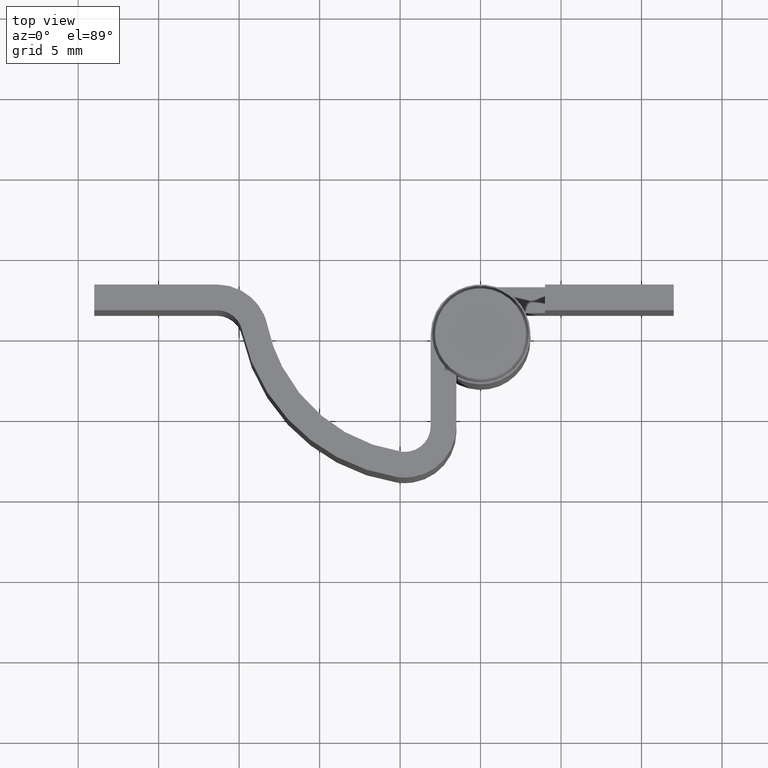
[diagram: clean part render]
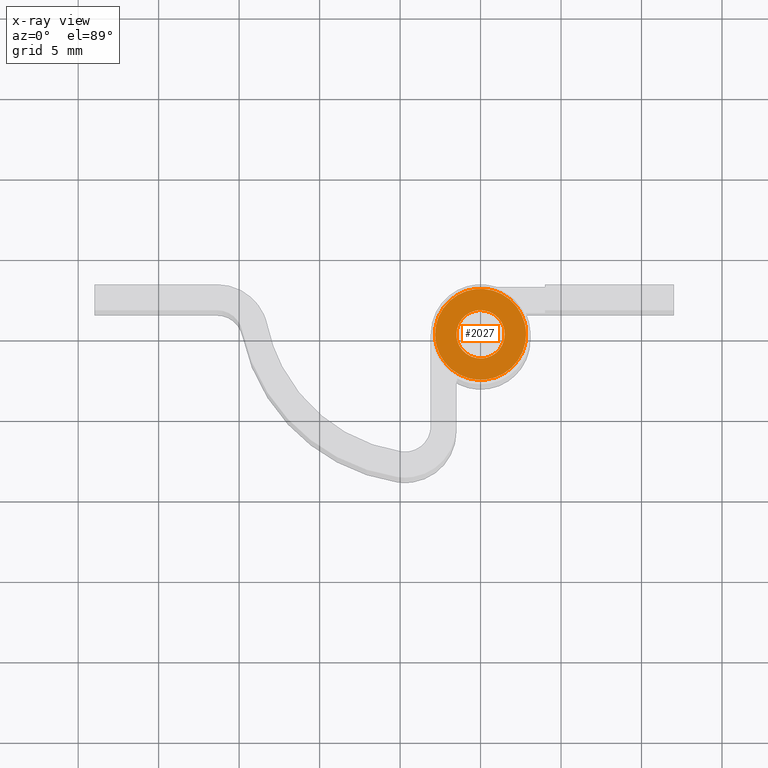
[diagram: x-ray — body ghosted, one internal face saturated and labeled with its STEP entity id]
A machine part, top view, then the same camera in x-ray: the body is ghosted and one INTERNAL B-rep face — a face not visible from any outside direction — is saturated and labeled: STEP entity #2027.
In plain terms, the highlighted face is a freeform B-spline surface patch.
Its self-contained STEP definition (entity closure, byte-faithful):
#1787=CARTESIAN_POINT('',(-0.177051352071544,1.489514289535229,23.0));
#1788=VERTEX_POINT('',#1787);
#1794=CARTESIAN_POINT('',(1.500000000000000,0.0,23.0));
#1795=VERTEX_POINT('',#1794);
#1796=CARTESIAN_POINT('',(-0.177051352071544,1.489514289535229,23.0));
#1797=CARTESIAN_POINT('',(-0.088836179565185,1.499999999999999,23.0));
#1798=CARTESIAN_POINT('',(0.0,1.500000000000000,23.0));
#1799=CARTESIAN_POINT('',(1.500000000000000,1.500000000000000,22.999999999999993));
#1800=CARTESIAN_POINT('',(1.500000000000000,0.0,23.0));
#1808=(BOUNDED_CURVE()B_SPLINE_CURVE(2,(#1796,#1797,#1798,#1799,#1800),.UNSPECIFIED.,.F.,.U.)B_SPLINE_CURVE_WITH_KNOTS((3,2,3),(0.229562473496037,0.250000000000000,0.500000000000000),.UNSPECIFIED.)CURVE()GEOMETRIC_REPRESENTATION_ITEM()RATIONAL_B_SPLINE_CURVE((0.956026754149454,0.976055948310676,1.0,0.707106781186548,1.0))REPRESENTATION_ITEM(''));
#1809=EDGE_CURVE('',#1788,#1795,#1808,.T.);
#1811=CARTESIAN_POINT('',(0.091572809393615,-1.497202197627214,23.0));
#1812=VERTEX_POINT('',#1811);
#1813=CARTESIAN_POINT('',(1.500000000000000,0.0,23.0));
#1814=CARTESIAN_POINT('',(1.500000000000000,-1.411059100186070,23.000000000000004));
#1815=CARTESIAN_POINT('',(0.091572809393615,-1.497202197627214,23.000000000000004));
#1823=(BOUNDED_CURVE()B_SPLINE_CURVE(2,(#1813,#1814,#1815),.UNSPECIFIED.,.F.,.U.)B_SPLINE_CURVE_WITH_KNOTS((3,3),(0.500000000000000,0.739332962220917),.UNSPECIFIED.)CURVE()GEOMETRIC_REPRESENTATION_ITEM()RATIONAL_B_SPLINE_CURVE((1.0,0.719603993307829,0.976072041628085))REPRESENTATION_ITEM(''));
#1824=EDGE_CURVE('',#1795,#1812,#1823,.T.);
#1898=CARTESIAN_POINT('',(-1.500000000000000,0.0,23.0));
#1899=VERTEX_POINT('',#1898);
#1900=CARTESIAN_POINT('',(0.091572809393615,-1.497202197627214,23.000000000000004));
#1901=CARTESIAN_POINT('',(0.045829145039469,-1.500000000000000,23.000000000000007));
#1902=CARTESIAN_POINT('',(0.0,-1.500000000000000,23.0));
#1903=CARTESIAN_POINT('',(-1.500000000000000,-1.500000000000000,22.999999999999993));
#1904=CARTESIAN_POINT('',(-1.500000000000000,0.0,23.0));
#1912=(BOUNDED_CURVE()B_SPLINE_CURVE(2,(#1900,#1901,#1902,#1903,#1904),.UNSPECIFIED.,.F.,.U.)B_SPLINE_CURVE_WITH_KNOTS((3,2,3),(0.739332962220918,0.750000000000000,1.0),.UNSPECIFIED.)CURVE()GEOMETRIC_REPRESENTATION_ITEM()RATIONAL_B_SPLINE_CURVE((0.976072041628086,0.987502787878719,1.0,0.707106781186548,1.0))REPRESENTATION_ITEM(''));
#1913=EDGE_CURVE('',#1812,#1899,#1912,.T.);
#1915=CARTESIAN_POINT('',(-1.500000000000000,0.0,23.0));
#1916=CARTESIAN_POINT('',(-1.500000000000000,1.332261788771395,22.999999999999993));
#1917=CARTESIAN_POINT('',(-0.177051352071544,1.489514289535229,23.0));
#1925=(BOUNDED_CURVE()B_SPLINE_CURVE(2,(#1915,#1916,#1917),.UNSPECIFIED.,.F.,.U.)B_SPLINE_CURVE_WITH_KNOTS((3,3),(0.0,0.229562473496037),.UNSPECIFIED.)CURVE()GEOMETRIC_REPRESENTATION_ITEM()RATIONAL_B_SPLINE_CURVE((1.0,0.731050832875872,0.956026754149454))REPRESENTATION_ITEM(''));
#1926=EDGE_CURVE('',#1899,#1788,#1925,.T.);
#1980=CARTESIAN_POINT('',(-3.110986930441753,-3.110986930441724,23.0));
#1981=CARTESIAN_POINT('',(3.110987132746625,-3.110986930441724,23.0));
#1982=CARTESIAN_POINT('',(-3.110986930441753,3.110987132746597,23.0));
#1983=CARTESIAN_POINT('',(3.110987132746625,3.110987132746597,23.0));
#1984=B_SPLINE_SURFACE_WITH_KNOTS('',1,1,((#1980,#1982),(#1981,#1983)),.UNSPECIFIED.,.F.,.F.,.U.,(2,2),(2,2),(0.0,6.221974063188378),(0.0,6.221974063188321),.UNSPECIFIED.);
#1985=CARTESIAN_POINT('',(-2.828427124746190,0.0,23.0));
#1986=VERTEX_POINT('',#1985);
#1987=CARTESIAN_POINT('',(2.828427124746190,0.0,23.0));
#1988=VERTEX_POINT('',#1987);
#1989=CARTESIAN_POINT('',(-2.828427124746190,0.0,23.0));
#1990=CARTESIAN_POINT('',(-2.828427124746189,2.828427124746189,22.999999999999996));
#1991=CARTESIAN_POINT('',(0.0,2.828427124746190,23.0));
#1992=CARTESIAN_POINT('',(2.828427124746189,2.828427124746189,22.999999999999996));
#1993=CARTESIAN_POINT('',(2.828427124746190,0.0,23.0));
#2001=(BOUNDED_CURVE()B_SPLINE_CURVE(2,(#1989,#1990,#1991,#1992,#1993),.UNSPECIFIED.,.F.,.U.)B_SPLINE_CURVE_WITH_KNOTS((3,2,3),(0.0,0.250000000000000,0.500000000000000),.UNSPECIFIED.)CURVE()GEOMETRIC_REPRESENTATION_ITEM()RATIONAL_B_SPLINE_CURVE((1.0,0.707106781186547,1.0,0.707106781186547,1.0))REPRESENTATION_ITEM(''));
#2002=EDGE_CURVE('',#1986,#1988,#2001,.T.);
#2003=ORIENTED_EDGE('',*,*,#2002,.T.);
#2004=CARTESIAN_POINT('',(2.828427124746190,0.0,23.0));
#2005=CARTESIAN_POINT('',(2.828427124746189,-2.828427124746189,22.999999999999996));
#2006=CARTESIAN_POINT('',(0.0,-2.828427124746190,23.0));
#2007=CARTESIAN_POINT('',(-2.828427124746189,-2.828427124746189,22.999999999999996));
#2008=CARTESIAN_POINT('',(-2.828427124746190,0.0,23.0));
#2016=(BOUNDED_CURVE()B_SPLINE_CURVE(2,(#2004,#2005,#2006,#2007,#2008),.UNSPECIFIED.,.F.,.U.)B_SPLINE_CURVE_WITH_KNOTS((3,2,3),(0.500000000000000,0.750000000000000,1.0),.UNSPECIFIED.)CURVE()GEOMETRIC_REPRESENTATION_ITEM()RATIONAL_B_SPLINE_CURVE((1.0,0.707106781186547,1.0,0.707106781186547,1.0))REPRESENTATION_ITEM(''));
#2017=EDGE_CURVE('',#1988,#1986,#2016,.T.);
#2018=ORIENTED_EDGE('',*,*,#2017,.T.);
#2019=EDGE_LOOP('',(#2003,#2018));
#2020=FACE_OUTER_BOUND('',#2019,.T.);
#2021=ORIENTED_EDGE('',*,*,#1824,.F.);
#2022=ORIENTED_EDGE('',*,*,#1809,.F.);
#2023=ORIENTED_EDGE('',*,*,#1926,.F.);
#2024=ORIENTED_EDGE('',*,*,#1913,.F.);
#2025=EDGE_LOOP('',(#2021,#2022,#2023,#2024));
#2026=FACE_BOUND('',#2025,.T.);
#2027=ADVANCED_FACE('',(#2020,#2026),#1984,.F.);